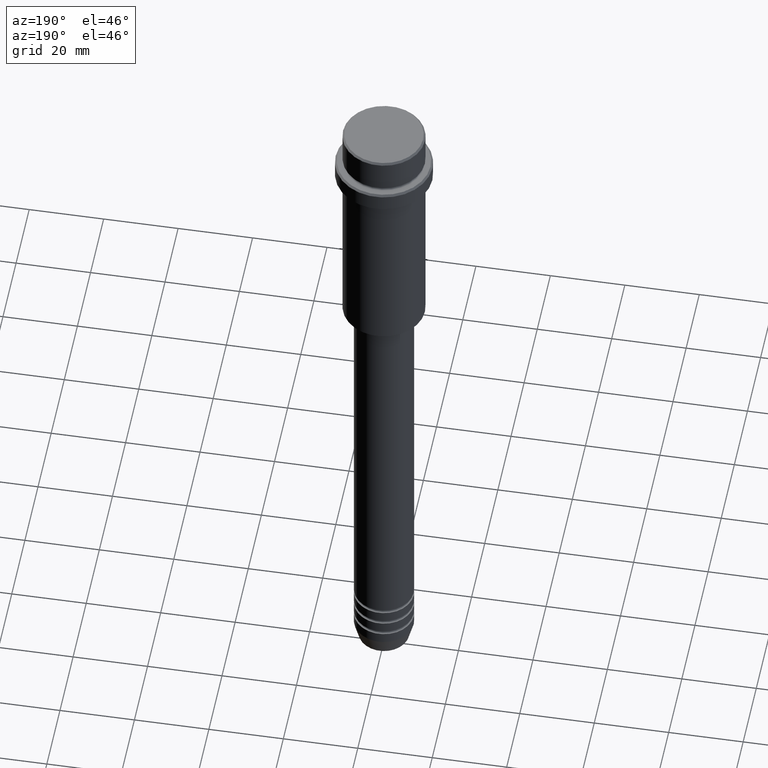
[diagram: clean part render]
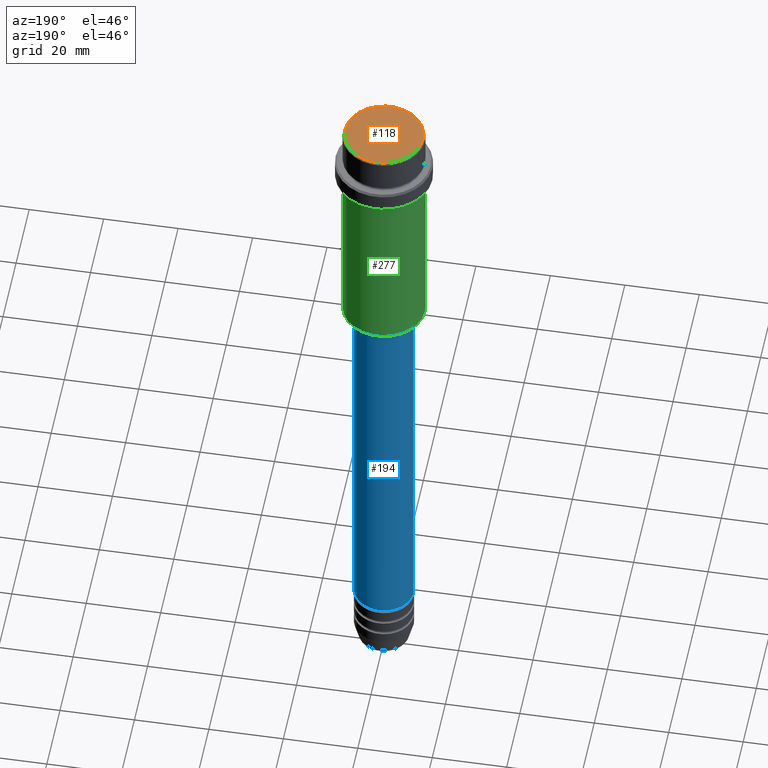
[diagram: same view with three faces highlighted in distinct colors, each labeled with its STEP entity id]
A machine part, auxiliary view with three faces highlighted in distinct colors.
Their STEP definitions:

[orange] entity #118 — the highlighted planar face has unit normal (0, -0, 1).
#54 = DIRECTION ( 'NONE',  ( 0.000000000000000000, -0.000000000000000000, 1.000000000000000000 ) ) ;
#93 = DIRECTION ( 'NONE',  ( -0.000000000000000000, -0.000000000000000000, 1.000000000000000000 ) ) ;
#118 = ADVANCED_FACE ( 'NONE', ( #328 ), #233, .T. ) ;
#121 = DIRECTION ( 'NONE',  ( 1.000000000000000000, 0.000000000000000000, 0.000000000000000000 ) ) ;
#148 = AXIS2_PLACEMENT_3D ( 'NONE', #1033, #393, #278 ) ;
#160 = VERTEX_POINT ( 'NONE', #1235 ) ;
#233 = PLANE ( 'NONE',  #1286 ) ;
#244 = CARTESIAN_POINT ( 'NONE',  ( 0.000000000000000000, 0.000000000000000000, 0.000000000000000000 ) ) ;
#278 = DIRECTION ( 'NONE',  ( 1.000000000000000000, 0.000000000000000000, 0.000000000000000000 ) ) ;
#309 = CIRCLE ( 'NONE', #846, 10.50000000000000888 ) ;
#328 = FACE_OUTER_BOUND ( 'NONE', #1369, .T. ) ;
#393 = DIRECTION ( 'NONE',  ( -0.000000000000000000, -0.000000000000000000, 1.000000000000000000 ) ) ;
#499 = CARTESIAN_POINT ( 'NONE',  ( 0.000000000000000000, 0.000000000000000000, 0.000000000000000000 ) ) ;
#698 = EDGE_CURVE ( 'NONE', #1068, #160, #753, .T. ) ;
#753 = CIRCLE ( 'NONE', #148, 10.50000000000000888 ) ;
#846 = AXIS2_PLACEMENT_3D ( 'NONE', #499, #93, #954 ) ;
#954 = DIRECTION ( 'NONE',  ( 1.000000000000000000, 0.000000000000000000, 0.000000000000000000 ) ) ;
#1031 = ORIENTED_EDGE ( 'NONE', *, *, #698, .T. ) ;
#1033 = CARTESIAN_POINT ( 'NONE',  ( 0.000000000000000000, 0.000000000000000000, 0.000000000000000000 ) ) ;
#1068 = VERTEX_POINT ( 'NONE', #1319 ) ;
#1235 = CARTESIAN_POINT ( 'NONE',  ( -10.50000000000000888, 0.000000000000000000, 0.000000000000000000 ) ) ;
#1286 = AXIS2_PLACEMENT_3D ( 'NONE', #244, #54, #121 ) ;
#1319 = CARTESIAN_POINT ( 'NONE',  ( 10.50000000000000888, 1.316495309083404420E-15, 0.000000000000000000 ) ) ;
#1369 = EDGE_LOOP ( 'NONE', ( #1398, #1031 ) ) ;
#1372 = EDGE_CURVE ( 'NONE', #160, #1068, #309, .T. ) ;
#1398 = ORIENTED_EDGE ( 'NONE', *, *, #1372, .T. ) ;

[blue] entity #194 — the highlighted cylindrical surface (edge-blend (fillet) strip) has radius 8 mm, axis along (-0, -0, 1).
#66 = AXIS2_PLACEMENT_3D ( 'NONE', #766, #902, #544 ) ;
#115 = VERTEX_POINT ( 'NONE', #1306 ) ;
#127 = ORIENTED_EDGE ( 'NONE', *, *, #1381, .T. ) ;
#145 = VERTEX_POINT ( 'NONE', #356 ) ;
#191 = VERTEX_POINT ( 'NONE', #347 ) ;
#194 = ADVANCED_FACE ( 'NONE', ( #444 ), #465, .T. ) ;
#259 = CIRCLE ( 'NONE', #306, 8.000000000000000000 ) ;
#262 = ORIENTED_EDGE ( 'NONE', *, *, #741, .F. ) ;
#263 = AXIS2_PLACEMENT_3D ( 'NONE', #911, #602, #1356 ) ;
#274 = ORIENTED_EDGE ( 'NONE', *, *, #1295, .T. ) ;
#306 = AXIS2_PLACEMENT_3D ( 'NONE', #718, #608, #412 ) ;
#335 = CARTESIAN_POINT ( 'NONE',  ( 8.000000000000000000, 0.000000000000000000, 0.000000000000000000 ) ) ;
#347 = CARTESIAN_POINT ( 'NONE',  ( 8.000000000000000000, 0.000000000000000000, -172.9999999999999147 ) ) ;
#356 = CARTESIAN_POINT ( 'NONE',  ( -8.000000000000000000, 9.797174393178825657E-16, -172.9999999999999147 ) ) ;
#371 = EDGE_CURVE ( 'NONE', #191, #1206, #453, .T. ) ;
#412 = DIRECTION ( 'NONE',  ( 1.000000000000000000, 0.000000000000000000, 0.000000000000000000 ) ) ;
#419 = CIRCLE ( 'NONE', #263, 8.000000000000000000 ) ;
#420 = CARTESIAN_POINT ( 'NONE',  ( -8.000000000000000000, 9.797174393178825657E-16, 0.000000000000000000 ) ) ;
#444 = FACE_OUTER_BOUND ( 'NONE', #1090, .T. ) ;
#453 = LINE ( 'NONE', #335, #918 ) ;
#465 = CYLINDRICAL_SURFACE ( 'NONE', #66, 8.000000000000000000 ) ;
#544 = DIRECTION ( 'NONE',  ( 1.000000000000000000, 0.000000000000000000, 0.000000000000000000 ) ) ;
#556 = CARTESIAN_POINT ( 'NONE',  ( 8.000000000000000000, 0.000000000000000000, -67.00000000000000000 ) ) ;
#602 = DIRECTION ( 'NONE',  ( -0.000000000000000000, -0.000000000000000000, 1.000000000000000000 ) ) ;
#608 = DIRECTION ( 'NONE',  ( -0.000000000000000000, -0.000000000000000000, 1.000000000000000000 ) ) ;
#690 = ORIENTED_EDGE ( 'NONE', *, *, #371, .F. ) ;
#718 = CARTESIAN_POINT ( 'NONE',  ( 0.000000000000000000, 0.000000000000000000, -67.00000000000000000 ) ) ;
#741 = EDGE_CURVE ( 'NONE', #1206, #115, #259, .T. ) ;
#766 = CARTESIAN_POINT ( 'NONE',  ( 0.000000000000000000, 0.000000000000000000, 0.000000000000000000 ) ) ;
#848 = DIRECTION ( 'NONE',  ( -0.000000000000000000, -0.000000000000000000, 1.000000000000000000 ) ) ;
#902 = DIRECTION ( 'NONE',  ( -0.000000000000000000, -0.000000000000000000, 1.000000000000000000 ) ) ;
#911 = CARTESIAN_POINT ( 'NONE',  ( 0.000000000000000000, 0.000000000000000000, -172.9999999999999147 ) ) ;
#918 = VECTOR ( 'NONE', #1237, 1000.000000000000000 ) ;
#1090 = EDGE_LOOP ( 'NONE', ( #274, #127, #262, #690 ) ) ;
#1206 = VERTEX_POINT ( 'NONE', #556 ) ;
#1237 = DIRECTION ( 'NONE',  ( -0.000000000000000000, -0.000000000000000000, 1.000000000000000000 ) ) ;
#1295 = EDGE_CURVE ( 'NONE', #191, #145, #419, .T. ) ;
#1306 = CARTESIAN_POINT ( 'NONE',  ( -8.000000000000000000, 9.797174393178825657E-16, -67.00000000000000000 ) ) ;
#1356 = DIRECTION ( 'NONE',  ( 1.000000000000000000, 0.000000000000000000, 0.000000000000000000 ) ) ;
#1381 = EDGE_CURVE ( 'NONE', #145, #115, #1392, .T. ) ;
#1392 = LINE ( 'NONE', #420, #1417 ) ;
#1417 = VECTOR ( 'NONE', #848, 1000.000000000000000 ) ;

[green] entity #277 — the highlighted cylindrical surface (partial cylindrical patch) has radius 11 mm, axis along (-0, -0, 1).
#26 = CARTESIAN_POINT ( 'NONE',  ( -10.99999999999998757, 1.347111479062086827E-15, -65.50000000000007105 ) ) ;
#72 = ORIENTED_EDGE ( 'NONE', *, *, #204, .F. ) ;
#75 = DIRECTION ( 'NONE',  ( -1.000000000000000000, 0.000000000000000000, 0.000000000000000000 ) ) ;
#82 = DIRECTION ( 'NONE',  ( 1.000000000000000000, 0.000000000000000000, 0.000000000000000000 ) ) ;
#89 = CYLINDRICAL_SURFACE ( 'NONE', #632, 10.99999999999998757 ) ;
#130 = VECTOR ( 'NONE', #518, 1000.000000000000000 ) ;
#199 = VERTEX_POINT ( 'NONE', #1021 ) ;
#204 = EDGE_CURVE ( 'NONE', #246, #889, #876, .T. ) ;
#210 = CIRCLE ( 'NONE', #896, 10.99999999999998757 ) ;
#225 = DIRECTION ( 'NONE',  ( -0.000000000000000000, -0.000000000000000000, 1.000000000000000000 ) ) ;
#246 = VERTEX_POINT ( 'NONE', #995 ) ;
#266 = VERTEX_POINT ( 'NONE', #26 ) ;
#277 = ADVANCED_FACE ( 'NONE', ( #1063 ), #89, .T. ) ;
#308 = CARTESIAN_POINT ( 'NONE',  ( -10.99999999999998757, 1.347111479062086827E-15, 0.000000000000000000 ) ) ;
#363 = ORIENTED_EDGE ( 'NONE', *, *, #931, .T. ) ;
#518 = DIRECTION ( 'NONE',  ( -0.000000000000000000, -0.000000000000000000, 1.000000000000000000 ) ) ;
#632 = AXIS2_PLACEMENT_3D ( 'NONE', #840, #1397, #734 ) ;
#715 = DIRECTION ( 'NONE',  ( -0.000000000000000000, -0.000000000000000000, 1.000000000000000000 ) ) ;
#723 = EDGE_LOOP ( 'NONE', ( #363, #845, #1273, #72 ) ) ;
#727 = CIRCLE ( 'NONE', #1267, 10.99999999999997158 ) ;
#734 = DIRECTION ( 'NONE',  ( 1.000000000000000000, 0.000000000000000000, 0.000000000000000000 ) ) ;
#816 = CARTESIAN_POINT ( 'NONE',  ( 0.000000000000000000, 0.000000000000000000, -65.50000000000007105 ) ) ;
#838 = VECTOR ( 'NONE', #225, 1000.000000000000000 ) ;
#840 = CARTESIAN_POINT ( 'NONE',  ( 0.000000000000000000, 0.000000000000000000, 0.000000000000000000 ) ) ;
#845 = ORIENTED_EDGE ( 'NONE', *, *, #1079, .T. ) ;
#853 = EDGE_CURVE ( 'NONE', #889, #199, #727, .T. ) ;
#876 = LINE ( 'NONE', #1213, #838 ) ;
#889 = VERTEX_POINT ( 'NONE', #1393 ) ;
#896 = AXIS2_PLACEMENT_3D ( 'NONE', #816, #715, #75 ) ;
#931 = EDGE_CURVE ( 'NONE', #246, #266, #210, .T. ) ;
#950 = CARTESIAN_POINT ( 'NONE',  ( 0.000000000000000000, 0.000000000000000000, -16.00000000000000355 ) ) ;
#995 = CARTESIAN_POINT ( 'NONE',  ( 10.99999999999998757, 0.000000000000000000, -65.50000000000007105 ) ) ;
#1021 = CARTESIAN_POINT ( 'NONE',  ( -10.99999999999997158, 1.347111479062085841E-15, -16.00000000000000355 ) ) ;
#1063 = FACE_OUTER_BOUND ( 'NONE', #723, .T. ) ;
#1079 = EDGE_CURVE ( 'NONE', #266, #199, #1287, .T. ) ;
#1138 = DIRECTION ( 'NONE',  ( -0.000000000000000000, -0.000000000000000000, 1.000000000000000000 ) ) ;
#1213 = CARTESIAN_POINT ( 'NONE',  ( 10.99999999999998757, 0.000000000000000000, 0.000000000000000000 ) ) ;
#1267 = AXIS2_PLACEMENT_3D ( 'NONE', #950, #1138, #82 ) ;
#1273 = ORIENTED_EDGE ( 'NONE', *, *, #853, .F. ) ;
#1287 = LINE ( 'NONE', #308, #130 ) ;
#1393 = CARTESIAN_POINT ( 'NONE',  ( 10.99999999999997158, 0.000000000000000000, -16.00000000000000355 ) ) ;
#1397 = DIRECTION ( 'NONE',  ( -0.000000000000000000, -0.000000000000000000, 1.000000000000000000 ) ) ;